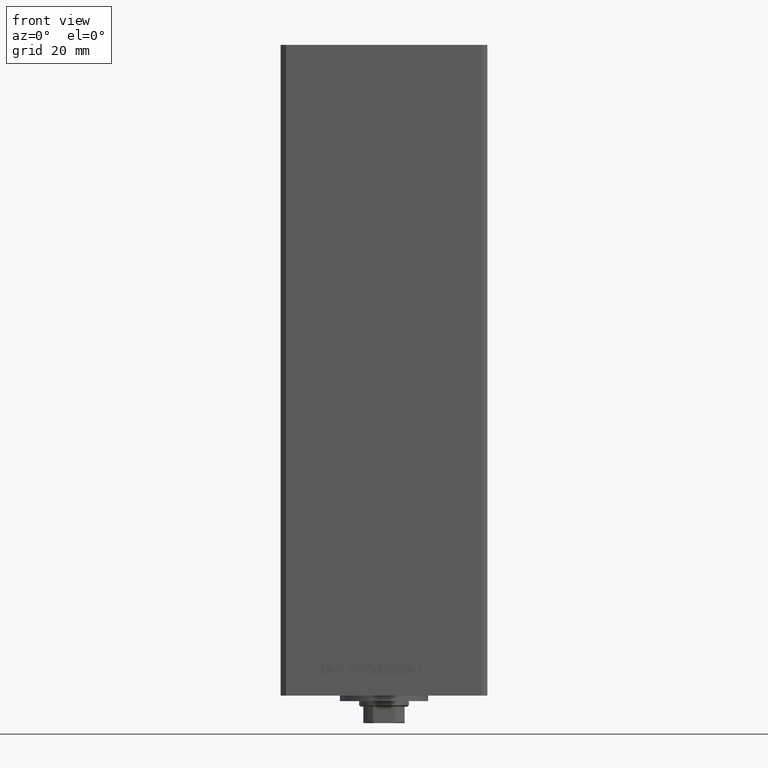
[diagram: clean part render]
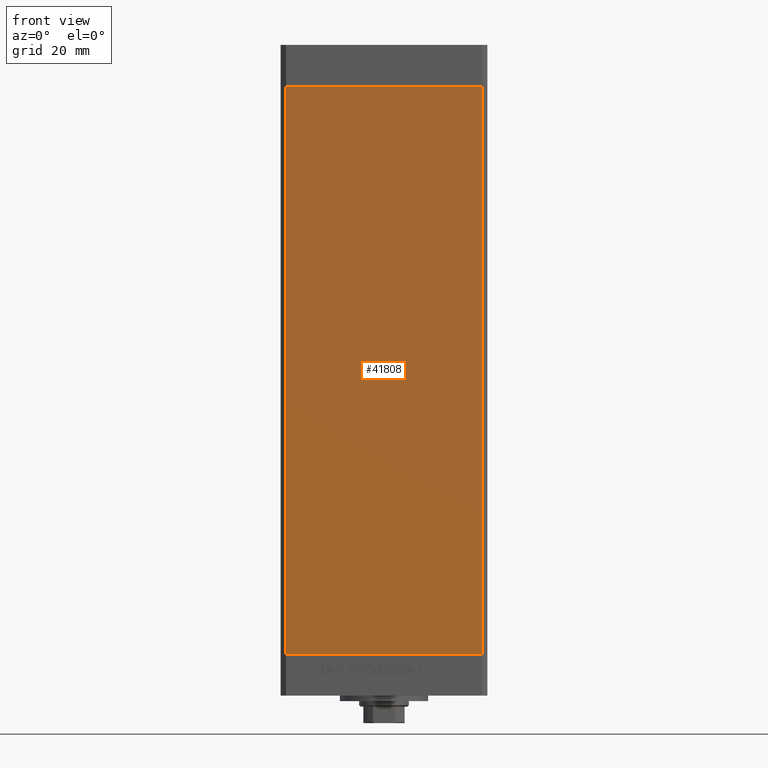
[diagram: same view with one face highlighted and labeled with its STEP entity id]
A machine part, front view. The second image highlights one B-rep face of the part: STEP entity #41808.
In plain terms, the highlighted planar face has unit normal (0, 1, 0).
Its self-contained STEP definition (entity closure, byte-faithful):
#794 = DIRECTION ( 'NONE',  ( -0.000000000000000000, -0.000000000000000000, -1.000000000000000000 ) ) ;
#3709 = DIRECTION ( 'NONE',  ( 0.000000000000000000, -0.000000000000000000, 1.000000000000000000 ) ) ;
#4209 = CARTESIAN_POINT ( 'NONE',  ( -35.49999999999999289, -32.50000000000000000, 206.0000000000000000 ) ) ;
#4524 = VECTOR ( 'NONE', #9118, 1000.000000000000000 ) ;
#5543 = CARTESIAN_POINT ( 'NONE',  ( -35.49999999999999289, -32.50000000000000000, 0.000000000000000000 ) ) ;
#5629 = ORIENTED_EDGE ( 'NONE', *, *, #40119, .T. ) ;
#7910 = CARTESIAN_POINT ( 'NONE',  ( -35.49999999999999289, -32.50000000000000000, 206.0000000000000000 ) ) ;
#9033 = ORIENTED_EDGE ( 'NONE', *, *, #39191, .T. ) ;
#9118 = DIRECTION ( 'NONE',  ( 1.000000000000000000, 0.000000000000000000, 0.000000000000000000 ) ) ;
#11227 = VECTOR ( 'NONE', #36224, 1000.000000000000000 ) ;
#11956 = CARTESIAN_POINT ( 'NONE',  ( 35.49999999999999289, -32.50000000000000000, 206.0000000000000000 ) ) ;
#13935 = LINE ( 'NONE', #44370, #11227 ) ;
#14176 = DIRECTION ( 'NONE',  ( 1.000000000000000000, 0.000000000000000000, 0.000000000000000000 ) ) ;
#14858 = PLANE ( 'NONE',  #43270 ) ;
#15298 = ORIENTED_EDGE ( 'NONE', *, *, #17372, .F. ) ;
#17372 = EDGE_CURVE ( 'NONE', #18673, #32728, #13935, .T. ) ;
#18673 = VERTEX_POINT ( 'NONE', #11956 ) ;
#21481 = LINE ( 'NONE', #39556, #4524 ) ;
#22515 = DIRECTION ( 'NONE',  ( 0.000000000000000000, 1.000000000000000000, 0.000000000000000000 ) ) ;
#24461 = EDGE_CURVE ( 'NONE', #27258, #18673, #26953, .T. ) ;
#26953 = LINE ( 'NONE', #7910, #34252 ) ;
#27258 = VERTEX_POINT ( 'NONE', #30350 ) ;
#30350 = CARTESIAN_POINT ( 'NONE',  ( -35.49999999999999289, -32.50000000000000000, 206.0000000000000000 ) ) ;
#31048 = EDGE_LOOP ( 'NONE', ( #5629, #15298, #39189, #9033 ) ) ;
#32728 = VERTEX_POINT ( 'NONE', #41239 ) ;
#34252 = VECTOR ( 'NONE', #14176, 1000.000000000000000 ) ;
#36224 = DIRECTION ( 'NONE',  ( -0.000000000000000000, -0.000000000000000000, -1.000000000000000000 ) ) ;
#39054 = VERTEX_POINT ( 'NONE', #5543 ) ;
#39189 = ORIENTED_EDGE ( 'NONE', *, *, #24461, .F. ) ;
#39191 = EDGE_CURVE ( 'NONE', #27258, #39054, #42623, .T. ) ;
#39556 = CARTESIAN_POINT ( 'NONE',  ( -35.49999999999999289, -32.50000000000000000, 0.000000000000000000 ) ) ;
#40119 = EDGE_CURVE ( 'NONE', #39054, #32728, #21481, .T. ) ;
#41239 = CARTESIAN_POINT ( 'NONE',  ( 35.49999999999999289, -32.50000000000000000, 0.000000000000000000 ) ) ;
#41808 = ADVANCED_FACE ( 'NONE', ( #48746 ), #14858, .F. ) ;
#42556 = VECTOR ( 'NONE', #794, 1000.000000000000000 ) ;
#42623 = LINE ( 'NONE', #46567, #42556 ) ;
#43270 = AXIS2_PLACEMENT_3D ( 'NONE', #4209, #22515, #3709 ) ;
#44370 = CARTESIAN_POINT ( 'NONE',  ( 35.49999999999999289, -32.50000000000000000, 206.0000000000000000 ) ) ;
#46567 = CARTESIAN_POINT ( 'NONE',  ( -35.49999999999999289, -32.50000000000000000, 206.0000000000000000 ) ) ;
#48746 = FACE_OUTER_BOUND ( 'NONE', #31048, .T. ) ;